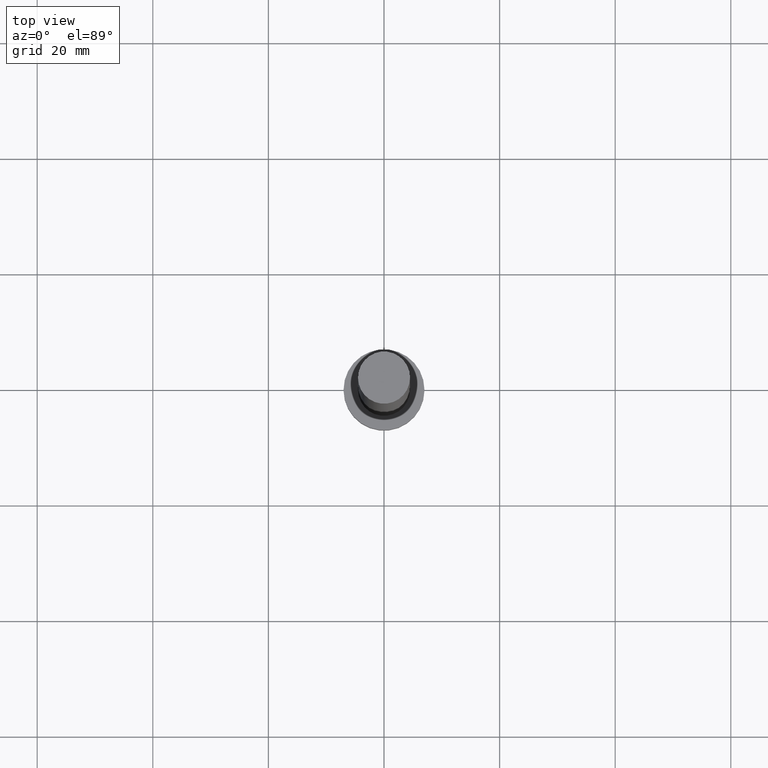
[diagram: clean part render]
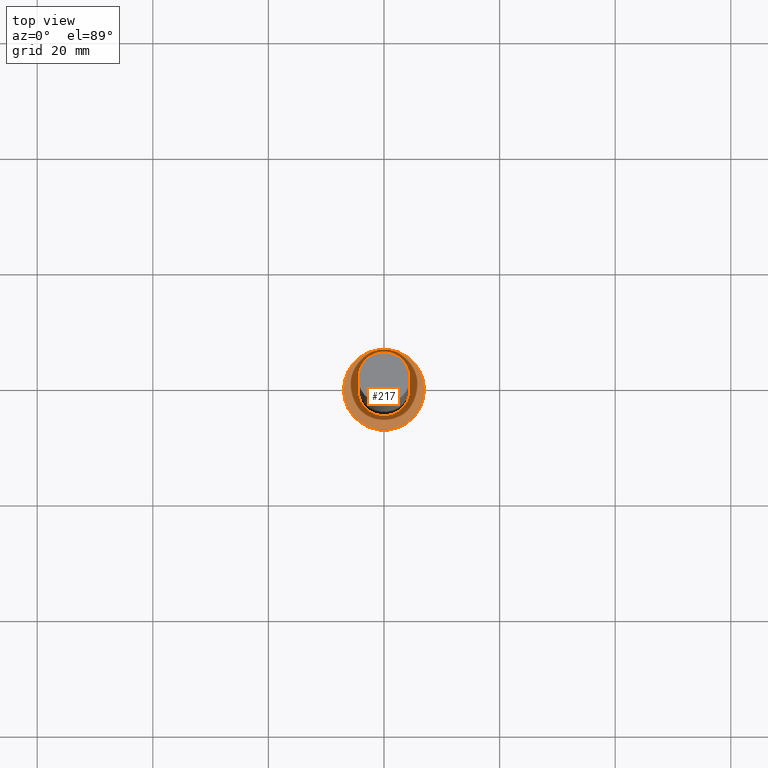
[diagram: same view with one face highlighted and labeled with its STEP entity id]
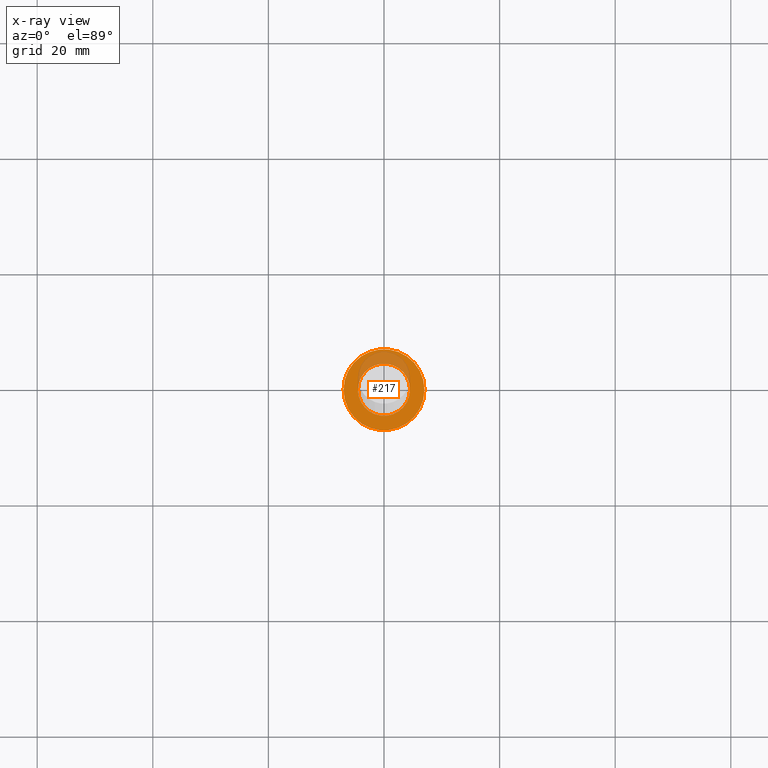
[diagram: x-ray of the same camera — body ghosted, the highlighted face saturated]
A machine part, top view. The second image highlights one B-rep face of the part: STEP entity #217.
The next image is the same camera in x-ray: the body ghosted, the highlighted face saturated — about 21% of this face is hidden behind the body in this view.
In plain terms, the highlighted planar face has unit normal (0, 0, 1).
Its self-contained STEP definition (entity closure, byte-faithful):
#1 = VERTEX_POINT ( 'NONE', #46 ) ;
#4 = CIRCLE ( 'NONE', #153, 7.000000000000000000 ) ;
#7 = CARTESIAN_POINT ( 'NONE',  ( -7.000000000000000000, 0.000000000000000000, 5.000000000000000000 ) ) ;
#26 = CARTESIAN_POINT ( 'NONE',  ( 0.000000000000000000, 0.000000000000000000, 5.000000000000000000 ) ) ;
#27 = EDGE_CURVE ( 'NONE', #177, #42, #112, .T. ) ;
#42 = VERTEX_POINT ( 'NONE', #7 ) ;
#46 = CARTESIAN_POINT ( 'NONE',  ( -4.500000000000000888, 0.000000000000000000, 5.000000000000000000 ) ) ;
#47 = DIRECTION ( 'NONE',  ( 1.000000000000000000, 0.000000000000000000, 0.000000000000000000 ) ) ;
#52 = DIRECTION ( 'NONE',  ( 1.000000000000000000, 0.000000000000000000, -0.000000000000000000 ) ) ;
#57 = AXIS2_PLACEMENT_3D ( 'NONE', #202, #63, #47 ) ;
#59 = ORIENTED_EDGE ( 'NONE', *, *, #140, .F. ) ;
#63 = DIRECTION ( 'NONE',  ( 0.000000000000000000, 0.000000000000000000, 1.000000000000000000 ) ) ;
#69 = CARTESIAN_POINT ( 'NONE',  ( 0.000000000000000000, 0.000000000000000000, 5.000000000000000000 ) ) ;
#74 = PLANE ( 'NONE',  #220 ) ;
#92 = FACE_OUTER_BOUND ( 'NONE', #142, .T. ) ;
#110 = CARTESIAN_POINT ( 'NONE',  ( 0.000000000000000000, 0.000000000000000000, 5.000000000000000000 ) ) ;
#111 = DIRECTION ( 'NONE',  ( 1.000000000000000000, 0.000000000000000000, 0.000000000000000000 ) ) ;
#112 = CIRCLE ( 'NONE', #57, 7.000000000000000000 ) ;
#113 = CARTESIAN_POINT ( 'NONE',  ( 4.500000000000000888, 5.510910596163089556E-16, 5.000000000000000000 ) ) ;
#140 = EDGE_CURVE ( 'NONE', #183, #1, #182, .T. ) ;
#142 = EDGE_LOOP ( 'NONE', ( #160, #143 ) ) ;
#143 = ORIENTED_EDGE ( 'NONE', *, *, #27, .T. ) ;
#153 = AXIS2_PLACEMENT_3D ( 'NONE', #242, #209, #169 ) ;
#154 = DIRECTION ( 'NONE',  ( 0.000000000000000000, 0.000000000000000000, 1.000000000000000000 ) ) ;
#158 = EDGE_CURVE ( 'NONE', #1, #183, #206, .T. ) ;
#160 = ORIENTED_EDGE ( 'NONE', *, *, #181, .T. ) ;
#165 = FACE_BOUND ( 'NONE', #179, .T. ) ;
#169 = DIRECTION ( 'NONE',  ( 1.000000000000000000, 0.000000000000000000, 0.000000000000000000 ) ) ;
#171 = DIRECTION ( 'NONE',  ( 0.000000000000000000, 0.000000000000000000, 1.000000000000000000 ) ) ;
#177 = VERTEX_POINT ( 'NONE', #190 ) ;
#179 = EDGE_LOOP ( 'NONE', ( #254, #59 ) ) ;
#181 = EDGE_CURVE ( 'NONE', #42, #177, #4, .T. ) ;
#182 = CIRCLE ( 'NONE', #215, 4.500000000000000888 ) ;
#183 = VERTEX_POINT ( 'NONE', #113 ) ;
#190 = CARTESIAN_POINT ( 'NONE',  ( 7.000000000000000000, 8.572527594031473190E-16, 5.000000000000000000 ) ) ;
#202 = CARTESIAN_POINT ( 'NONE',  ( 0.000000000000000000, 0.000000000000000000, 5.000000000000000000 ) ) ;
#206 = CIRCLE ( 'NONE', #251, 4.500000000000000888 ) ;
#209 = DIRECTION ( 'NONE',  ( 0.000000000000000000, 0.000000000000000000, 1.000000000000000000 ) ) ;
#215 = AXIS2_PLACEMENT_3D ( 'NONE', #26, #171, #111 ) ;
#217 = ADVANCED_FACE ( 'NONE', ( #165, #92 ), #74, .T. ) ;
#220 = AXIS2_PLACEMENT_3D ( 'NONE', #69, #154, #52 ) ;
#226 = DIRECTION ( 'NONE',  ( 1.000000000000000000, 0.000000000000000000, 0.000000000000000000 ) ) ;
#227 = DIRECTION ( 'NONE',  ( 0.000000000000000000, 0.000000000000000000, 1.000000000000000000 ) ) ;
#242 = CARTESIAN_POINT ( 'NONE',  ( 0.000000000000000000, 0.000000000000000000, 5.000000000000000000 ) ) ;
#251 = AXIS2_PLACEMENT_3D ( 'NONE', #110, #227, #226 ) ;
#254 = ORIENTED_EDGE ( 'NONE', *, *, #158, .F. ) ;